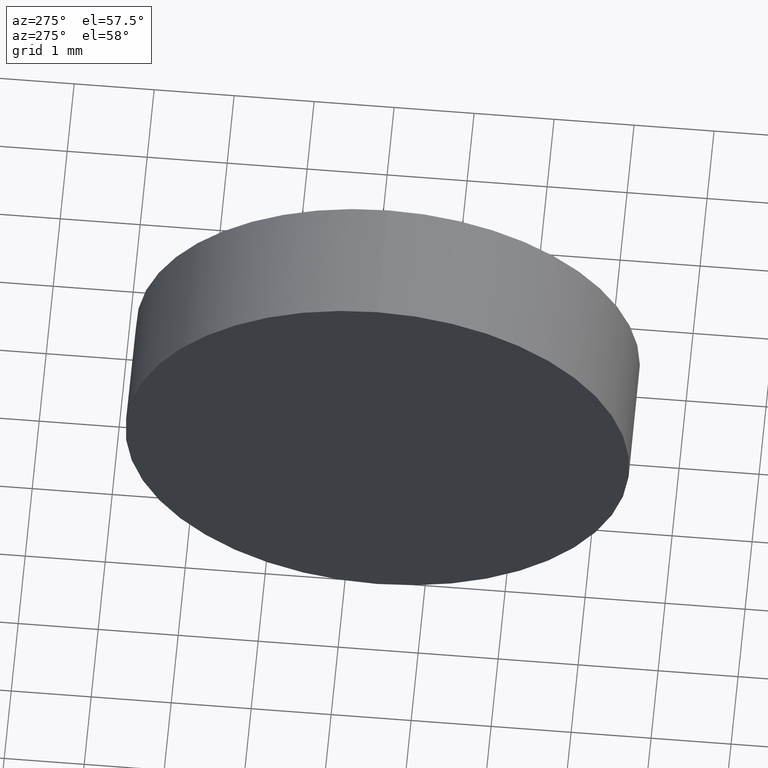
[diagram: clean part render]
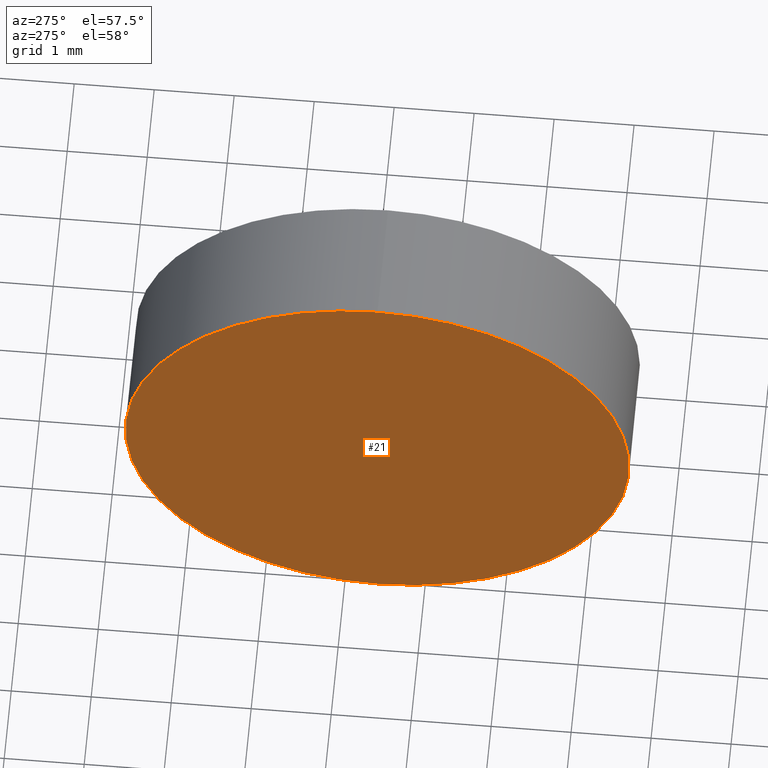
[diagram: same view with one face highlighted and labeled with its STEP entity id]
A machine part, auxiliary view. The second image highlights one B-rep face of the part: STEP entity #21.
In plain terms, the highlighted planar face has unit normal (1, 0, 0).
Its self-contained STEP definition (entity closure, byte-faithful):
#8 = FACE_OUTER_BOUND ( 'NONE', #40, .T. ) ;
#9 = CARTESIAN_POINT ( 'NONE',  ( 447.8845367775709300, 67.58735190658296700, 0.0000000000000000000 ) ) ;
#10 = ORIENTED_EDGE ( 'NONE', *, *, #98, .T. ) ;
#21 = ADVANCED_FACE ( 'NONE', ( #8 ), #116, .F. ) ;
#28 = DIRECTION ( 'NONE',  ( 0.0000000000000000000, 0.0000000000000000000, 1.000000000000000000 ) ) ;
#40 = EDGE_LOOP ( 'NONE', ( #150, #10 ) ) ;
#42 = DIRECTION ( 'NONE',  ( 0.0000000000000000000, 0.0000000000000000000, -1.000000000000000000 ) ) ;
#48 = CARTESIAN_POINT ( 'NONE',  ( 447.8845367775709300, 67.58735190658296700, 0.0000000000000000000 ) ) ;
#57 = DIRECTION ( 'NONE',  ( 0.0000000000000000000, 0.0000000000000000000, 1.000000000000000000 ) ) ;
#73 = DIRECTION ( 'NONE',  ( -1.000000000000000000, -0.0000000000000000000, -0.0000000000000000000 ) ) ;
#90 = DIRECTION ( 'NONE',  ( -1.000000000000000000, -0.0000000000000000000, -0.0000000000000000000 ) ) ;
#95 = VERTEX_POINT ( 'NONE', #172 ) ;
#98 = EDGE_CURVE ( 'NONE', #95, #130, #183, .T. ) ;
#101 = EDGE_CURVE ( 'NONE', #130, #95, #128, .T. ) ;
#114 = AXIS2_PLACEMENT_3D ( 'NONE', #48, #73, #28 ) ;
#116 = PLANE ( 'NONE',  #139 ) ;
#128 = CIRCLE ( 'NONE', #133, 3.150000000000013700 ) ;
#130 = VERTEX_POINT ( 'NONE', #137 ) ;
#133 = AXIS2_PLACEMENT_3D ( 'NONE', #9, #90, #57 ) ;
#137 = CARTESIAN_POINT ( 'NONE',  ( 447.8845367775709300, 67.58735190658296700, 3.150000000000013700 ) ) ;
#139 = AXIS2_PLACEMENT_3D ( 'NONE', #157, #171, #42 ) ;
#150 = ORIENTED_EDGE ( 'NONE', *, *, #101, .T. ) ;
#157 = CARTESIAN_POINT ( 'NONE',  ( 447.8845367775709300, 67.58735190658296700, 0.0000000000000000000 ) ) ;
#171 = DIRECTION ( 'NONE',  ( 1.000000000000000000, 0.0000000000000000000, 0.0000000000000000000 ) ) ;
#172 = CARTESIAN_POINT ( 'NONE',  ( 447.8845367775709300, 67.58735190658296700, -3.150000000000013700 ) ) ;
#183 = CIRCLE ( 'NONE', #114, 3.150000000000013700 ) ;